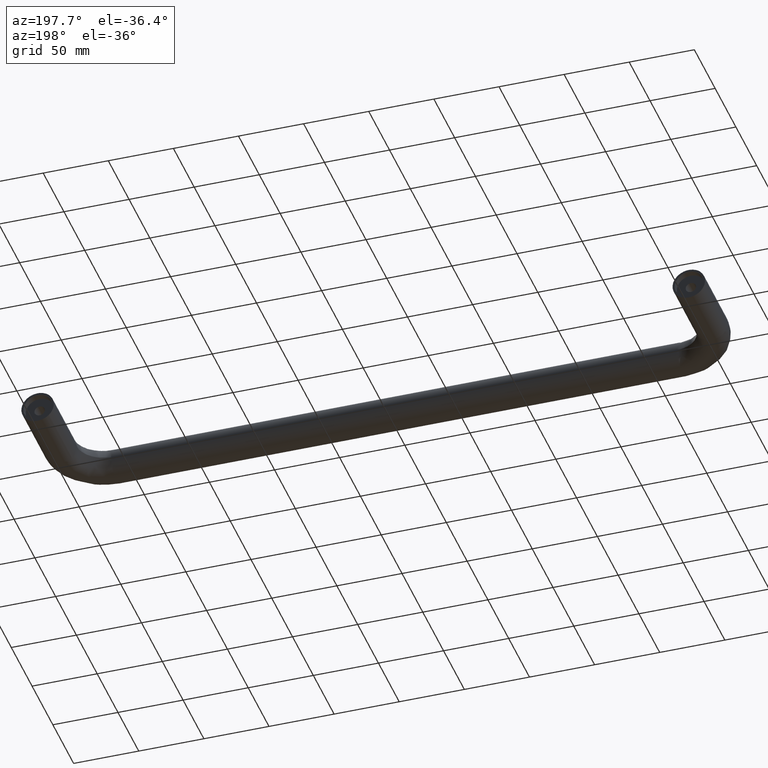
[diagram: clean part render]
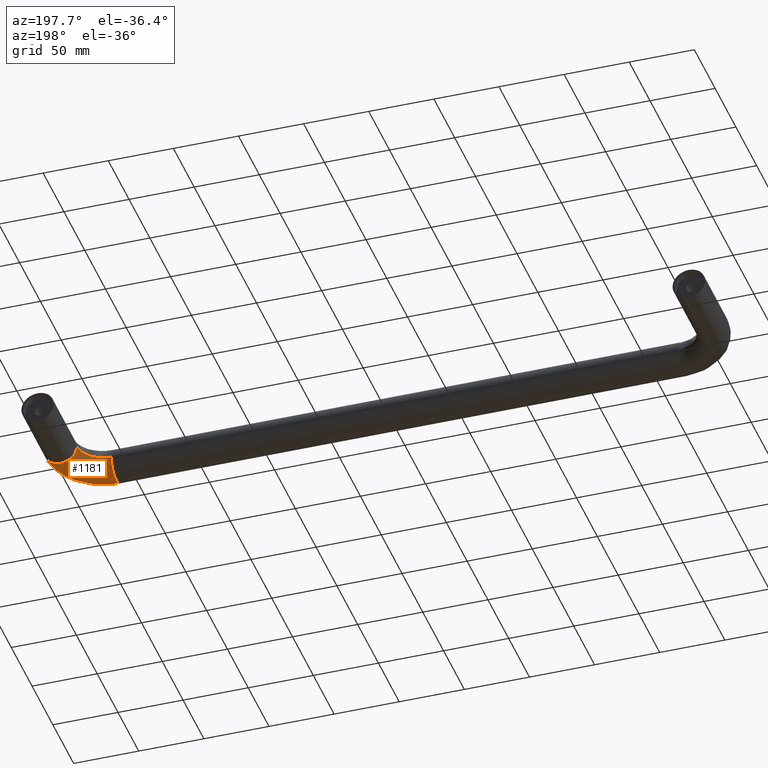
[diagram: same view with one face highlighted and labeled with its STEP entity id]
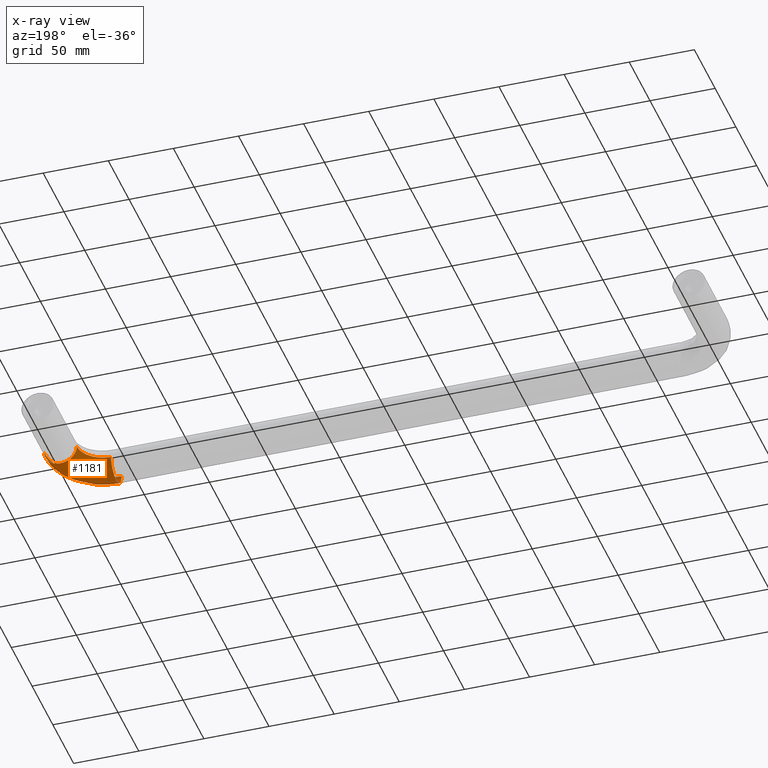
[diagram: x-ray of the same camera — body ghosted, the highlighted face saturated]
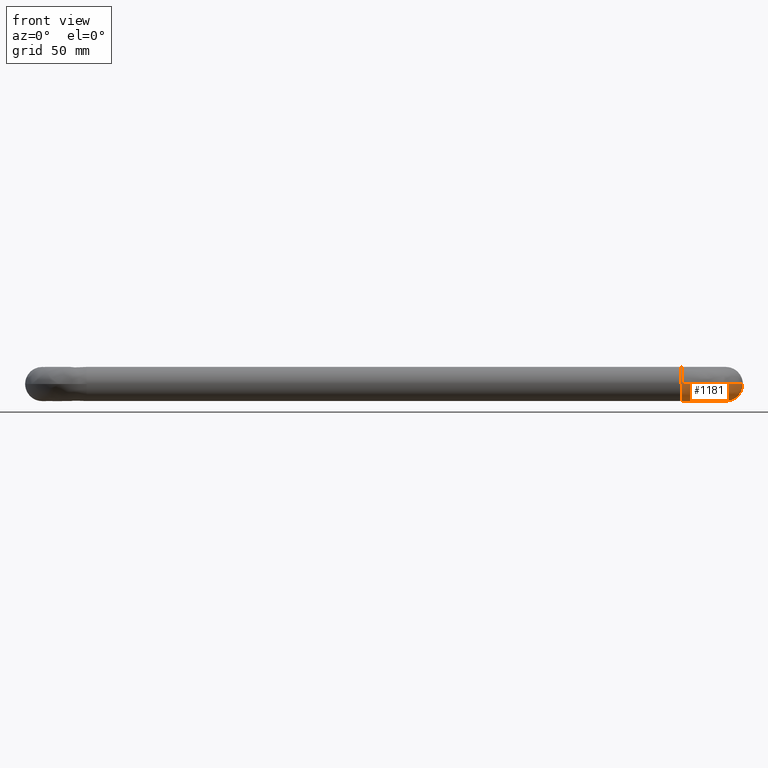
[diagram: same view with one face highlighted and labeled with its STEP entity id]
A machine part, auxiliary view. The second image highlights one B-rep face of the part: STEP entity #1181.
The next image is the same camera in x-ray: the body ghosted, the highlighted face saturated — about 0% of this face is hidden behind the body in this view.
A second angle (front view) of the same face is appended — the face is thin or edge-on in the first view.
In plain terms, the highlighted face is a freeform B-spline surface patch.
Its self-contained STEP definition (entity closure, byte-faithful):
#698=CARTESIAN_POINT('',(491.395571924993870,-55.000000000736406,-9.067183548490329));
#699=VERTEX_POINT('',#698);
#700=CARTESIAN_POINT('',(487.500000000000000,-55.000000000781917,-8.731620E-016));
#701=VERTEX_POINT('',#700);
#702=CARTESIAN_POINT('',(491.395571924993870,-55.000000000736406,-9.067183548490329));
#703=CARTESIAN_POINT('',(487.500000000000000,-55.000000000781924,-5.370427189655226));
#704=CARTESIAN_POINT('',(487.500000000000000,-55.000000000781917,-8.731620E-016));
#712=(BOUNDED_CURVE()B_SPLINE_CURVE(2,(#702,#703,#704),.UNSPECIFIED.,.F.,.U.)B_SPLINE_CURVE_WITH_KNOTS((3,3),(0.494732610755188,0.666666666666667),.UNSPECIFIED.)CURVE()GEOMETRIC_REPRESENTATION_ITEM()RATIONAL_B_SPLINE_CURVE((0.853699666448926,0.848925042821305,1.0))REPRESENTATION_ITEM(''));
#713=EDGE_CURVE('',#699,#701,#712,.T.);
#778=CARTESIAN_POINT('',(512.500000000000000,-55.000000000489337,-1.530758E-015));
#779=VERTEX_POINT('',#778);
#780=CARTESIAN_POINT('',(512.500000000000000,-55.000000000489337,-1.530758E-015));
#781=CARTESIAN_POINT('',(512.500000000000000,-55.000000000489337,-12.500000000000002));
#782=CARTESIAN_POINT('',(500.0,-55.000000000635630,-12.500000000000000));
#783=CARTESIAN_POINT('',(495.013008968196350,-55.000000000693994,-12.500000000000005));
#784=CARTESIAN_POINT('',(491.395571924992960,-55.000000000736343,-9.067183548491267));
#792=(BOUNDED_CURVE()B_SPLINE_CURVE(2,(#780,#781,#782,#783,#784),.UNSPECIFIED.,.F.,.U.)B_SPLINE_CURVE_WITH_KNOTS((3,2,3),(0.0,0.333333333333333,0.494732610755188),.UNSPECIFIED.)CURVE()GEOMETRIC_REPRESENTATION_ITEM()RATIONAL_B_SPLINE_CURVE((1.0,0.707106781186547,1.0,0.858181738365243,0.853699666448926))REPRESENTATION_ITEM(''));
#793=EDGE_CURVE('',#779,#699,#792,.T.);
#1019=CARTESIAN_POINT('',(467.500095764886620,-99.999999999796216,-1.530758E-015));
#1020=VERTEX_POINT('',#1019);
#1021=CARTESIAN_POINT('',(467.500095764886680,-99.999999999796216,-1.530758E-015));
#1022=CARTESIAN_POINT('',(472.167808975484090,-99.999990066400898,-1.530758E-015));
#1023=CARTESIAN_POINT('',(476.736146844641330,-99.041952629921667,-1.530758E-015));
#1024=CARTESIAN_POINT('',(512.499999999602550,-91.541826506036799,-1.530758E-015));
#1025=CARTESIAN_POINT('',(512.500000000000000,-55.000000000489337,-1.530758E-015));
#1033=(BOUNDED_CURVE()B_SPLINE_CURVE(2,(#1021,#1022,#1023,#1024,#1025),.UNSPECIFIED.,.F.,.U.)B_SPLINE_CURVE_WITH_KNOTS((3,2,3),(-2.308970305121112,-2.0,-0.065551411412067),.UNSPECIFIED.)CURVE()GEOMETRIC_REPRESENTATION_ITEM()RATIONAL_B_SPLINE_CURVE((0.937993818261643,0.963332292788154,1.0,0.770425204988850,0.984951048162383))REPRESENTATION_ITEM(''));
#1034=EDGE_CURVE('',#1020,#779,#1033,.T.);
#1039=CARTESIAN_POINT('',(467.499999999353520,-75.0,-8.232085E-016));
#1040=VERTEX_POINT('',#1039);
#1041=CARTESIAN_POINT('',(467.499999999353410,-74.999999999999986,-1.646417E-015));
#1042=CARTESIAN_POINT('',(469.574560714452330,-75.000000000067061,-1.701537E-015));
#1043=CARTESIAN_POINT('',(471.604954153173880,-74.574201168894234,-1.776357E-015));
#1044=CARTESIAN_POINT('',(487.499999999365000,-71.240811780575328,-1.190627E-015));
#1045=CARTESIAN_POINT('',(487.500000000000060,-55.000000000781931,-1.746324E-015));
#1053=(BOUNDED_CURVE()B_SPLINE_CURVE(2,(#1041,#1042,#1043,#1044,#1045),.UNSPECIFIED.,.F.,.U.)B_SPLINE_CURVE_WITH_KNOTS((3,2,3),(-2.308973391286646,-2.0,-0.065551411455042),.UNSPECIFIED.)CURVE()GEOMETRIC_REPRESENTATION_ITEM()RATIONAL_B_SPLINE_CURVE((0.937993312073502,0.963331926530904,1.0,0.770425204993950,0.984951048152851))REPRESENTATION_ITEM(''));
#1054=EDGE_CURVE('',#1040,#701,#1053,.T.);
#1102=CARTESIAN_POINT('',(465.941622618910510,-74.939194064407630,0.349459221148219));
#1103=CARTESIAN_POINT('',(468.799445031943380,-75.162551427461281,0.349459221148219));
#1104=CARTESIAN_POINT('',(471.604954153173760,-74.574201168894220,0.349459221148219));
#1105=CARTESIAN_POINT('',(488.206258657031470,-71.092700530211232,0.349459221148219));
#1106=CARTESIAN_POINT('',(487.481747956517840,-54.145746757577250,0.349459221148219));
#1107=CARTESIAN_POINT('',(465.941622618910400,-74.939194064407644,0.175747192080912));
#1108=CARTESIAN_POINT('',(468.799445031943430,-75.162551427461281,0.175747192080911));
#1109=CARTESIAN_POINT('',(471.604954153173820,-74.574201168894220,0.175747192080911));
#1110=CARTESIAN_POINT('',(488.206258657031470,-71.092700530211260,0.175747192080911));
#1111=CARTESIAN_POINT('',(487.481747956517890,-54.145746757577257,0.175747192080911));
#1112=CARTESIAN_POINT('',(465.941622618910460,-74.939194064407630,-12.499999999999996));
#1113=CARTESIAN_POINT('',(468.799445031943380,-75.162551427461267,-12.499999999999998));
#1114=CARTESIAN_POINT('',(471.604954153173880,-74.574201168894220,-12.499999999999996));
#1115=CARTESIAN_POINT('',(488.206258657031360,-71.092700530211246,-12.499999999999998));
#1116=CARTESIAN_POINT('',(487.481747956517950,-54.145746757577257,-12.499999999999996));
#1117=CARTESIAN_POINT('',(464.967636755729640,-87.401190354662404,-12.499999999999993));
#1118=CARTESIAN_POINT('',(469.611598176908100,-87.764146069624587,-12.499999999999993));
#1119=CARTESIAN_POINT('',(474.170550498907570,-86.808076899453127,-12.500000000000000));
#1120=CARTESIAN_POINT('',(501.147670317676100,-81.150638361593266,-12.499999999999996));
#1121=CARTESIAN_POINT('',(499.970340429341720,-53.611838481063039,-12.500000000000000));
#1122=CARTESIAN_POINT('',(463.993650892548770,-99.863186644917164,-12.499999999999991));
#1123=CARTESIAN_POINT('',(470.423751321872660,-100.365740711787860,-12.499999999999993));
#1124=CARTESIAN_POINT('',(476.736146844641330,-99.041952630012020,-12.499999999999995));
#1125=CARTESIAN_POINT('',(514.089081978320790,-91.208576192975301,-12.499999999999995));
#1126=CARTESIAN_POINT('',(512.458932902165320,-53.077930204548828,-12.499999999999995));
#1127=CARTESIAN_POINT('',(463.993650892548710,-99.863186644917164,0.175747192080917));
#1128=CARTESIAN_POINT('',(470.423751321872770,-100.365740711787860,0.175747192080917));
#1129=CARTESIAN_POINT('',(476.736146844641330,-99.041952630012034,0.175747192080917));
#1130=CARTESIAN_POINT('',(514.089081978320680,-91.208576192975286,0.175747192080917));
#1131=CARTESIAN_POINT('',(512.458932902165430,-53.077930204548828,0.175747192080917));
#1132=CARTESIAN_POINT('',(463.993650892548710,-99.863186644917164,0.349459221148228));
#1133=CARTESIAN_POINT('',(470.423751321872660,-100.365740711787880,0.349459221148228));
#1134=CARTESIAN_POINT('',(476.736146844641330,-99.041952630012062,0.349459221148228));
#1135=CARTESIAN_POINT('',(514.089081978320790,-91.208576192975286,0.349459221148228));
#1136=CARTESIAN_POINT('',(512.458932902165430,-53.077930204548828,0.349459221148228));
#1144=(BOUNDED_SURFACE()B_SPLINE_SURFACE(2,2,((#1102,#1107,#1112,#1117,#1122,#1127,#1132),(#1103,#1108,#1113,#1118,#1123,#1128,#1133),(#1104,#1109,#1114,#1119,#1124,#1129,#1134),(#1105,#1110,#1115,#1120,#1125,#1130,#1135),(#1106,#1111,#1116,#1121,#1126,#1131,#1136)),.UNSPECIFIED.,.F.,.F.,.U.)B_SPLINE_SURFACE_WITH_KNOTS((3,2,3),(3,1,2,1,3),(0.0,13.905091249418460,79.957474205394377),(0.0,0.414213562373089,21.124891681028011,41.835569799682929,42.249783362056029),.UNSPECIFIED.)GEOMETRIC_REPRESENTATION_ITEM()RATIONAL_B_SPLINE_SURFACE(((0.931895286954577,0.926499585327406,0.651318802341702,0.921103883700236,0.651318802341702,0.926499585327406,0.931895286954577),(0.961163435269853,0.955598270187185,0.671774850971116,0.950033105104517,0.671774850971116,0.955598270187185,0.961163435269853),(1.011715728752538,1.005857864376269,0.707106781186548,1.0,0.707106781186548,1.005857864376269,1.011715728752538),(0.771580702773416,0.767113227391011,0.539271982888400,0.762645752008607,0.539271982888400,0.767113227391012,0.771580702773416),(1.011715728752538,1.005857864376269,0.707106781186548,1.0,0.707106781186548,1.005857864376269,1.011715728752538)))REPRESENTATION_ITEM('')SURFACE());
#1145=ORIENTED_EDGE('',*,*,#1034,.F.);
#1146=CARTESIAN_POINT('',(467.500050805293090,-88.263106746120030,-12.476684980151720));
#1147=VERTEX_POINT('',#1146);
#1148=CARTESIAN_POINT('',(467.500095764886620,-99.999999999796216,-1.530758E-015));
#1149=CARTESIAN_POINT('',(467.500095764886790,-99.999999999796330,-11.758825834394509));
#1150=CARTESIAN_POINT('',(467.500050805293090,-88.263106746120030,-12.476684980151729));
#1158=(BOUNDED_CURVE()B_SPLINE_CURVE(2,(#1148,#1149,#1150),.UNSPECIFIED.,.F.,.U.)B_SPLINE_CURVE_WITH_KNOTS((3,3),(0.0,0.319110616284967),.UNSPECIFIED.)CURVE()GEOMETRIC_REPRESENTATION_ITEM()RATIONAL_B_SPLINE_CURVE((1.0,0.719603993316254,0.976072041612671))REPRESENTATION_ITEM(''));
#1159=EDGE_CURVE('',#1020,#1147,#1158,.T.);
#1160=ORIENTED_EDGE('',*,*,#1159,.T.);
#1161=CARTESIAN_POINT('',(467.500050805293090,-88.263106746120030,-12.476684980151729));
#1162=CARTESIAN_POINT('',(467.500049345070980,-87.881909542151533,-12.500000000003249));
#1163=CARTESIAN_POINT('',(467.500047882120100,-87.499999999898307,-12.500000000003199));
#1164=CARTESIAN_POINT('',(467.499999999353460,-75.000000000000085,-12.500000000001547));
#1165=CARTESIAN_POINT('',(467.499999999353520,-75.0,-8.232085E-016));
#1173=(BOUNDED_CURVE()B_SPLINE_CURVE(2,(#1161,#1162,#1163,#1164,#1165),.UNSPECIFIED.,.F.,.U.)B_SPLINE_CURVE_WITH_KNOTS((3,2,3),(0.319110616284967,0.333333333333333,0.666666666666667),.UNSPECIFIED.)CURVE()GEOMETRIC_REPRESENTATION_ITEM()RATIONAL_B_SPLINE_CURVE((0.976072041612671,0.987502787870293,1.0,0.707106781186547,1.0))REPRESENTATION_ITEM(''));
#1174=EDGE_CURVE('',#1147,#1040,#1173,.T.);
#1175=ORIENTED_EDGE('',*,*,#1174,.T.);
#1176=ORIENTED_EDGE('',*,*,#1054,.T.);
#1177=ORIENTED_EDGE('',*,*,#713,.F.);
#1178=ORIENTED_EDGE('',*,*,#793,.F.);
#1179=EDGE_LOOP('',(#1145,#1160,#1175,#1176,#1177,#1178));
#1180=FACE_OUTER_BOUND('',#1179,.T.);
#1181=ADVANCED_FACE('',(#1180),#1144,.T.);